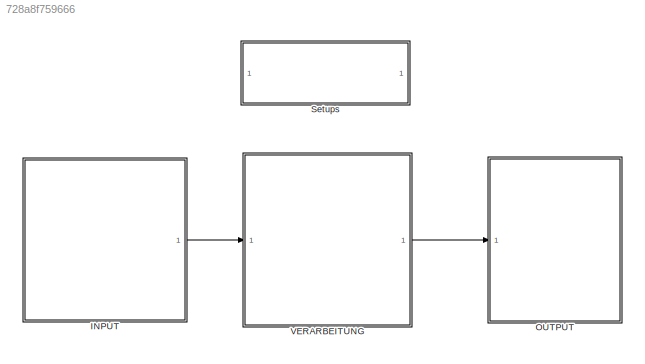
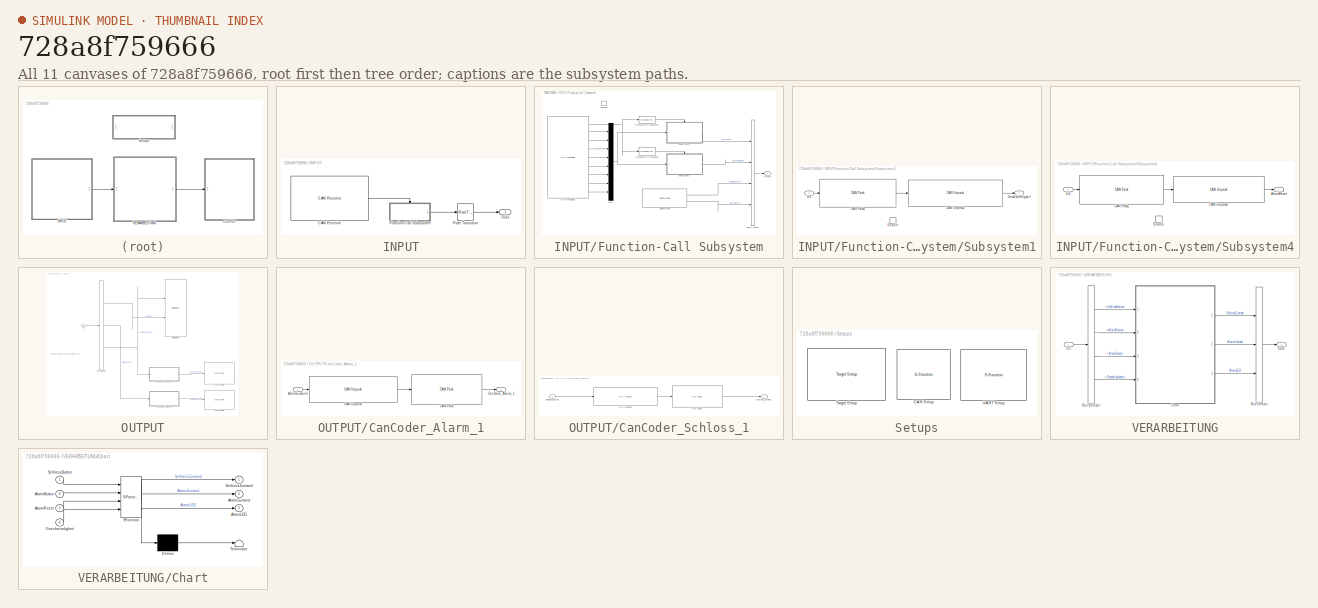
[diagram: thumbnail index - all 11 canvases of the model, root first then tree order]
MODEL slx_728a8f759666
KIND model
CONFIG AbsTol = auto
CONFIG EnableMultiTasking = off
CONFIG FixedStep = auto
CONFIG MaxStep = auto
CONFIG MinStep = auto
CONFIG PreLoadFcn = waijung.modelPreload; % Required for working with Waijung Blockset. Do not remove.
CONFIG RelTol = 1e-3
CONFIG SampleTimeConstraint = Unconstrained
CONFIG Solver = FixedStepAuto
CONFIG SolverName = FixedStepAuto
CONFIG StartTime = 0.0
CONFIG StopTime = 10.0
BLOCK [SubSystem] INPUT
  Ports = [0, 1]
  RequestExecContextInheritance = off
BLOCK [Reference] INPUT/CAN Receive  REF=stm32f4_canbus_lib/CAN Receive
  Ports = [0, 1]
  SourceBlock = stm32f4_canbus_lib/CAN Receive
  SourceProductName = Waijung Blockset
  SourceType = stm32f4_can
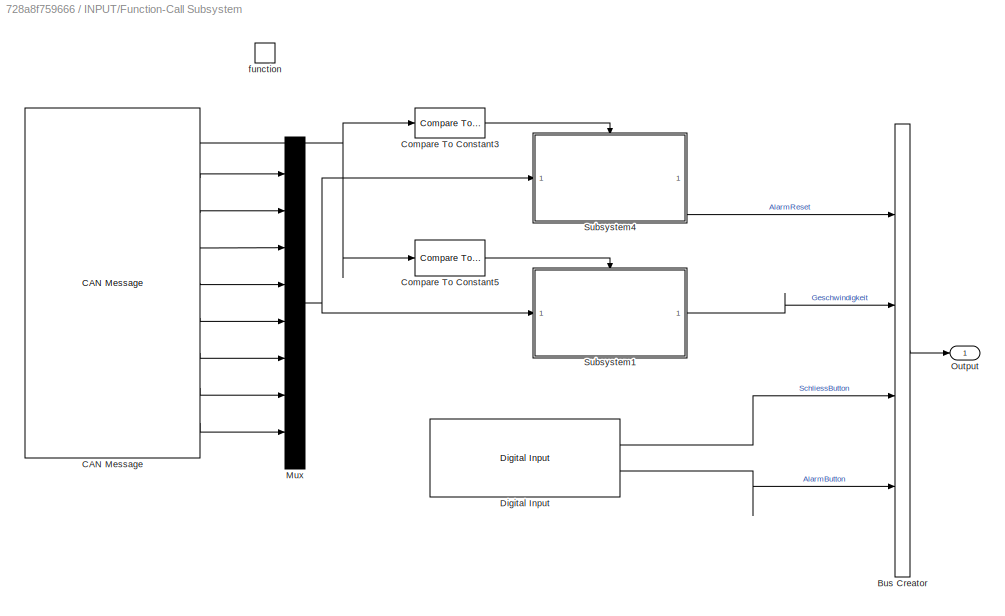
BLOCK [SubSystem] INPUT/Function-Call Subsystem
  Ports = [0, 1, 0, 1]
  RequestExecContextInheritance = off
  TreatAsAtomicUnit = on
BLOCK [BusCreator] INPUT/Function-Call Subsystem/Bus Creator
  DisplayOption = bar
  InheritFromInputs = on
  Inputs = 4
  Ports = [4, 1]
BLOCK [Reference] INPUT/Function-Call Subsystem/CAN Message  REF=stm32f4_canbus_lib/CAN Message
  Ports = [0, 9]
  SourceBlock = stm32f4_canbus_lib/CAN Message
  SourceProductName = Waijung Blockset
  SourceType = stm32f4_can
BLOCK [Reference] INPUT/Function-Call Subsystem/Compare To Constant3  REF=simulink/Logic and Bit
Operations/Compare
To Constant
  Ports = [1, 1]
  SourceBlock = simulink/Logic and Bit\nOperations/Compare\nTo Constant
  SourceProductBaseCode = SL
  SourceProductName = Simulink
  SourceType = Compare To Constant
BLOCK [Reference] INPUT/Function-Call Subsystem/Compare To Constant5  REF=simulink/Logic and Bit
Operations/Compare
To Constant
  Ports = [1, 1]
  SourceBlock = simulink/Logic and Bit\nOperations/Compare\nTo Constant
  SourceProductBaseCode = SL
  SourceProductName = Simulink
  SourceType = Compare To Constant
BLOCK [Reference] INPUT/Function-Call Subsystem/Digital Input  REF=stm32f4_io_lib/Digital Input
  Ports = [0, 2]
  SourceBlock = stm32f4_io_lib/Digital Input
  SourceType = stm32f4_digital_input
BLOCK [Mux] INPUT/Function-Call Subsystem/Mux
  DisplayOption = bar
  Inputs = 8
  Ports = [8, 1]
BLOCK [Outport] INPUT/Function-Call Subsystem/Output
  IconDisplay = Port number
  VectorParamsAs1DForOutWhenUnconnected = off
BLOCK [SubSystem] INPUT/Function-Call Subsystem/Subsystem1
  Ports = [1, 1, 1]
  RequestExecContextInheritance = off
BLOCK [Reference] INPUT/Function-Call Subsystem/Subsystem1/CAN Pack2  REF=canmsglib/CAN Pack
  Ports = [1, 1]
  SourceBlock = canmsglib/CAN Pack
  SourceProductBaseCode = XP
  SourceProductName = Simulink Real-Time
  SourceType = CAN Pack
BLOCK [Reference] INPUT/Function-Call Subsystem/Subsystem1/CAN Unpack2  REF=canmsglib/CAN Unpack
  Ports = [1, 1]
  SourceBlock = canmsglib/CAN Unpack
  SourceProductBaseCode = XP
  SourceProductName = Simulink Real-Time
  SourceType = CAN Unpack
BLOCK [EnablePort] INPUT/Function-Call Subsystem/Subsystem1/Enable
  Ports = []
BLOCK [Outport] INPUT/Function-Call Subsystem/Subsystem1/Geschwindigkeit
  IconDisplay = Port number
  VectorParamsAs1DForOutWhenUnconnected = off
BLOCK [Inport] INPUT/Function-Call Subsystem/Subsystem1/In1
  IconDisplay = Port number
BLOCK [SubSystem] INPUT/Function-Call Subsystem/Subsystem4
  Ports = [1, 1, 1]
  RequestExecContextInheritance = off
BLOCK [Outport] INPUT/Function-Call Subsystem/Subsystem4/AlarmReset
  IconDisplay = Port number
  VectorParamsAs1DForOutWhenUnconnected = off
BLOCK [Reference] INPUT/Function-Call Subsystem/Subsystem4/CAN Pack2  REF=canmsglib/CAN Pack
  Ports = [1, 1]
  SourceBlock = canmsglib/CAN Pack
  SourceProductBaseCode = XP
  SourceProductName = Simulink Real-Time
  SourceType = CAN Pack
BLOCK [Reference] INPUT/Function-Call Subsystem/Subsystem4/CAN Unpack2  REF=canmsglib/CAN Unpack
  Ports = [1, 1]
  SourceBlock = canmsglib/CAN Unpack
  SourceProductBaseCode = XP
  SourceProductName = Simulink Real-Time
  SourceType = CAN Unpack
BLOCK [EnablePort] INPUT/Function-Call Subsystem/Subsystem4/Enable
  Ports = []
BLOCK [Inport] INPUT/Function-Call Subsystem/Subsystem4/In1
  IconDisplay = Port number
BLOCK [TriggerPort] INPUT/Function-Call Subsystem/function
  Ports = []
  StatesWhenEnabling = held
  TriggerType = function-call
  VariantControl = Variant
BLOCK [Outport] INPUT/Out1
  IconDisplay = Port number
  VectorParamsAs1DForOutWhenUnconnected = off
BLOCK [RateTransition] INPUT/Rate Transition
BLOCK [SubSystem] OUTPUT
  Ports = [1]
  RequestExecContextInheritance = off
BLOCK [BusSelector] OUTPUT/Bus Selector
  OutputAsBus = off
  OutputSignals = AlarmLED,AlarmZustand,SchliessZustand
  Ports = [1, 3]
BLOCK [Reference] OUTPUT/CAN Transmit  REF=stm32f4_canbus_lib/CAN Transmit
  Ports = [1]
  SourceBlock = stm32f4_canbus_lib/CAN Transmit
  SourceType = stm32f4_can
BLOCK [Reference] OUTPUT/CAN Transmit1  REF=stm32f4_canbus_lib/CAN Transmit
  Ports = [1]
  SourceBlock = stm32f4_canbus_lib/CAN Transmit
  SourceType = stm32f4_can
BLOCK [SubSystem] OUTPUT/CanCoder_Alarm_1
  Ports = [1, 1]
  RequestExecContextInheritance = off
BLOCK [Inport] OUTPUT/CanCoder_Alarm_1/AlarmZustand
  IconDisplay = Port number
BLOCK [Reference] OUTPUT/CanCoder_Alarm_1/CAN Pack  REF=canmsglib/CAN Pack
  Ports = [1, 1]
  SourceBlock = canmsglib/CAN Pack
  SourceProductBaseCode = XP
  SourceProductName = Simulink Real-Time
  SourceType = CAN Pack
BLOCK [Reference] OUTPUT/CanCoder_Alarm_1/CAN Unpack  REF=canmsglib/CAN Unpack
  Ports = [1, 1]
  SourceBlock = canmsglib/CAN Unpack
  SourceProductBaseCode = XP
  SourceProductName = Simulink Real-Time
  SourceType = CAN Unpack
BLOCK [Outport] OUTPUT/CanCoder_Alarm_1/CanData_Alarm_1
  IconDisplay = Port number
  VectorParamsAs1DForOutWhenUnconnected = off
BLOCK [SubSystem] OUTPUT/CanCoder_Schloss_1
  Ports = [1, 1]
  RequestExecContextInheritance = off
BLOCK [Reference] OUTPUT/CanCoder_Schloss_1/CAN Pack  REF=canmsglib/CAN Pack
  Ports = [1, 1]
  SourceBlock = canmsglib/CAN Pack
  SourceProductBaseCode = XP
  SourceProductName = Simulink Real-Time
  SourceType = CAN Pack
BLOCK [Reference] OUTPUT/CanCoder_Schloss_1/CAN Unpack  REF=canmsglib/CAN Unpack
  Ports = [1, 1]
  SourceBlock = canmsglib/CAN Unpack
  SourceProductBaseCode = XP
  SourceProductName = Simulink Real-Time
  SourceType = CAN Unpack
BLOCK [Outport] OUTPUT/CanCoder_Schloss_1/CanData_Schloss_1
  IconDisplay = Port number
  VectorParamsAs1DForOutWhenUnconnected = off
BLOCK [Inport] OUTPUT/CanCoder_Schloss_1/SchliessZustand
  IconDisplay = Port number
BLOCK [Reference] OUTPUT/Digital Output  REF=stm32f4_io_lib/Digital Output
  Ports = [2]
  SourceBlock = stm32f4_io_lib/Digital Output
  SourceProductName = Waijung Blockset
  SourceType = stm32f4_digital_output
BLOCK [Inport] OUTPUT/In1
  IconDisplay = Port number
BLOCK [SubSystem] Setups
  Ports = []
  RequestExecContextInheritance = off
BLOCK [S-Function] Setups/CAN Setup
  EnableBusSupport = off
  FunctionName = stm32f4_can
  Parameters = conf,canmodule,0,inputarray,outputarray,'','',confstr,sampletime,sampletimestr,blockid
  Ports = []
  SFcnIsStateOwnerBlock = off
  SFunctionDeploymentMode = off
BLOCK [Reference] Setups/Target Setup  REF=stm32f4_device_config_lib/Target Setup
  Ports = []
  Priority = 100
  SourceBlock = stm32f4_device_config_lib/Target Setup
  SourceProductName = Waijung Blockset
  SourceType = stm32f4_target_setup
BLOCK [S-Function] Setups/UART Setup
  EnableBusSupport = off
  FunctionName = stm32f4_usart
  Parameters = configuration,uartmodule,transfer,baudrate,inputtype,outputtype,confstr,binheaderarray,binterminatorarray,asciiheader,asciiterminator,bindatalength,packetmode,varname,sampletime,sampletimestr,blockid
  Ports = []
  Priority = 1
  SFcnIsStateOwnerBlock = off
  SFunctionDeploymentMode = off
BLOCK [SubSystem] VERARBEITUNG
  Ports = [1, 1]
  RequestExecContextInheritance = off
BLOCK [BusCreator] VERARBEITUNG/Bus Creator
  DisplayOption = bar
  InheritFromInputs = on
  Inputs = 3
  Ports = [3, 1]
BLOCK [BusSelector] VERARBEITUNG/Bus Selector
  OutputAsBus = off
  OutputSignals = SchliessButton,AlarmButton,AlarmReset,Geschwindigkeit
  Ports = [1, 4]
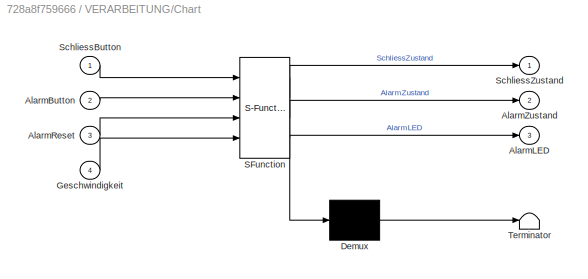
BLOCK [SubSystem] VERARBEITUNG/Chart
  ErrorFcn = Stateflow.Translate.translate
  PermitHierarchicalResolution = ExplicitOnly
  Ports = [4, 3]
  RequestExecContextInheritance = off
  SFBlockType = Chart
  TreatAsAtomicUnit = on
BLOCK [Demux] VERARBEITUNG/Chart/ Demux 
  Outputs = 1
  Ports = [1, 1]
BLOCK [S-Function] VERARBEITUNG/Chart/ SFunction 
  EnableBusSupport = off
  FunctionName = sf_sfun
  PortCounts = [4 4]
  Ports = [4, 4]
  SFcnIsStateOwnerBlock = off
  SFunctionDeploymentMode = off
  Tag = Stateflow S-Function 2
BLOCK [Terminator] VERARBEITUNG/Chart/ Terminator 
BLOCK [Inport] VERARBEITUNG/Chart/AlarmButton
  IconDisplay = Port number
  Port = 2
BLOCK [Outport] VERARBEITUNG/Chart/AlarmLED
  IconDisplay = Port number
  Port = 3
  VectorParamsAs1DForOutWhenUnconnected = off
BLOCK [Inport] VERARBEITUNG/Chart/AlarmReset
  IconDisplay = Port number
  Port = 3
BLOCK [Outport] VERARBEITUNG/Chart/AlarmZustand
  IconDisplay = Port number
  Port = 2
  VectorParamsAs1DForOutWhenUnconnected = off
BLOCK [Inport] VERARBEITUNG/Chart/Geschwindigkeit
  IconDisplay = Port number
  Port = 4
BLOCK [Inport] VERARBEITUNG/Chart/SchliessButton
  IconDisplay = Port number
BLOCK [Outport] VERARBEITUNG/Chart/SchliessZustand
  IconDisplay = Port number
  VectorParamsAs1DForOutWhenUnconnected = off
BLOCK [Inport] VERARBEITUNG/In1
  IconDisplay = Port number
BLOCK [Outport] VERARBEITUNG/Out1
  IconDisplay = Port number
  VectorParamsAs1DForOutWhenUnconnected = off
ANNOTATION OUTPUT: SchliessZustand = SchliessZustand_LED
LINE INPUT/CAN Receive:1 -> INPUT/Function-Call Subsystem:trigger
LINE INPUT/Function-Call Subsystem/Bus Creator:1 -> INPUT/Function-Call Subsystem/Output:1
NET INPUT/Function-Call Subsystem/CAN Message:1 -> INPUT/Function-Call Subsystem/Compare To Constant3:1, INPUT/Function-Call Subsystem/Compare To Constant5:1
LINE INPUT/Function-Call Subsystem/CAN Message:2 -> INPUT/Function-Call Subsystem/Mux:1
LINE INPUT/Function-Call Subsystem/CAN Message:3 -> INPUT/Function-Call Subsystem/Mux:2
LINE INPUT/Function-Call Subsystem/CAN Message:4 -> INPUT/Function-Call Subsystem/Mux:3
LINE INPUT/Function-Call Subsystem/CAN Message:5 -> INPUT/Function-Call Subsystem/Mux:4
LINE INPUT/Function-Call Subsystem/CAN Message:6 -> INPUT/Function-Call Subsystem/Mux:5
LINE INPUT/Function-Call Subsystem/CAN Message:7 -> INPUT/Function-Call Subsystem/Mux:6
LINE INPUT/Function-Call Subsystem/CAN Message:8 -> INPUT/Function-Call Subsystem/Mux:7
LINE INPUT/Function-Call Subsystem/CAN Message:9 -> INPUT/Function-Call Subsystem/Mux:8
LINE INPUT/Function-Call Subsystem/Compare To Constant3:1 -> INPUT/Function-Call Subsystem/Subsystem4:enable
LINE INPUT/Function-Call Subsystem/Compare To Constant5:1 -> INPUT/Function-Call Subsystem/Subsystem1:enable
LINE INPUT/Function-Call Subsystem/Digital Input:1 -> INPUT/Function-Call Subsystem/Bus Creator:3
LINE INPUT/Function-Call Subsystem/Digital Input:2 -> INPUT/Function-Call Subsystem/Bus Creator:4
NET INPUT/Function-Call Subsystem/Mux:1 -> INPUT/Function-Call Subsystem/Subsystem1:1, INPUT/Function-Call Subsystem/Subsystem4:1
LINE INPUT/Function-Call Subsystem/Subsystem1/CAN Pack2:1 -> INPUT/Function-Call Subsystem/Subsystem1/CAN Unpack2:1
LINE INPUT/Function-Call Subsystem/Subsystem1/CAN Unpack2:1 -> INPUT/Function-Call Subsystem/Subsystem1/Geschwindigkeit:1
LINE INPUT/Function-Call Subsystem/Subsystem1/In1:1 -> INPUT/Function-Call Subsystem/Subsystem1/CAN Pack2:1
LINE INPUT/Function-Call Subsystem/Subsystem1:1 -> INPUT/Function-Call Subsystem/Bus Creator:2
LINE INPUT/Function-Call Subsystem/Subsystem4/CAN Pack2:1 -> INPUT/Function-Call Subsystem/Subsystem4/CAN Unpack2:1
LINE INPUT/Function-Call Subsystem/Subsystem4/CAN Unpack2:1 -> INPUT/Function-Call Subsystem/Subsystem4/AlarmReset:1
LINE INPUT/Function-Call Subsystem/Subsystem4/In1:1 -> INPUT/Function-Call Subsystem/Subsystem4/CAN Pack2:1
LINE INPUT/Function-Call Subsystem/Subsystem4:1 -> INPUT/Function-Call Subsystem/Bus Creator:1
LINE INPUT/Function-Call Subsystem:1 -> INPUT/Rate Transition:1
LINE INPUT/Rate Transition:1 -> INPUT/Out1:1
LINE INPUT:1 -> VERARBEITUNG:1
LINE OUTPUT/Bus Selector:1 -> OUTPUT/Digital Output:2
LINE OUTPUT/Bus Selector:2 -> OUTPUT/CanCoder_Alarm_1:1
NET OUTPUT/Bus Selector:3 -> OUTPUT/CanCoder_Schloss_1:1, OUTPUT/Digital Output:1
LINE OUTPUT/CanCoder_Alarm_1/AlarmZustand:1 -> OUTPUT/CanCoder_Alarm_1/CAN Unpack:1
LINE OUTPUT/CanCoder_Alarm_1/CAN Pack:1 -> OUTPUT/CanCoder_Alarm_1/CanData_Alarm_1:1
LINE OUTPUT/CanCoder_Alarm_1/CAN Unpack:1 -> OUTPUT/CanCoder_Alarm_1/CAN Pack:1
LINE OUTPUT/CanCoder_Alarm_1:1 -> OUTPUT/CAN Transmit1:1
LINE OUTPUT/CanCoder_Schloss_1/CAN Pack:1 -> OUTPUT/CanCoder_Schloss_1/CanData_Schloss_1:1
LINE OUTPUT/CanCoder_Schloss_1/CAN Unpack:1 -> OUTPUT/CanCoder_Schloss_1/CAN Pack:1
LINE OUTPUT/CanCoder_Schloss_1/SchliessZustand:1 -> OUTPUT/CanCoder_Schloss_1/CAN Unpack:1
LINE OUTPUT/CanCoder_Schloss_1:1 -> OUTPUT/CAN Transmit:1
LINE OUTPUT/In1:1 -> OUTPUT/Bus Selector:1
LINE VERARBEITUNG/Bus Creator:1 -> VERARBEITUNG/Out1:1
LINE VERARBEITUNG/Bus Selector:1 -> VERARBEITUNG/Chart:1
LINE VERARBEITUNG/Bus Selector:2 -> VERARBEITUNG/Chart:2
LINE VERARBEITUNG/Bus Selector:3 -> VERARBEITUNG/Chart:3
LINE VERARBEITUNG/Bus Selector:4 -> VERARBEITUNG/Chart:4
LINE VERARBEITUNG/Chart:1 -> VERARBEITUNG/Bus Creator:1
LINE VERARBEITUNG/Chart:2 -> VERARBEITUNG/Bus Creator:2
LINE VERARBEITUNG/Chart:3 -> VERARBEITUNG/Bus Creator:3
LINE VERARBEITUNG/In1:1 -> VERARBEITUNG/Bus Selector:1
LINE VERARBEITUNG:1 -> OUTPUT:1
note: NET lines group one-source signal fan-out (src -> all destinations, sorted); 1:1 wires keep LINE
CHART VERARBEITUNG/Chart states=10 transitions=14
  STATE_LABEL 'State_Geschlossen\nen, du: SchliessZustand = true'
  STATE_LABEL 'State_AA_OFF'
  STATE_LABEL 'State_AA_ON'
  STATE_LABEL 'State_TRIGGER_ON\nen, du: AlarmZustand = true\nAlarmLED = true'
  STATE_LABEL 'State_TRIGGER_OFF\n'
  STATE_LABEL 'State_AlarmLED_OFF\nen, du: AlarmLED = false'
  STATE_LABEL 'State_AlarmLED_ON\nen, du: AlarmLED = true'
  STATE_LABEL '[after(0.5, sec)]'
  STATE_LABEL '[AlarmZustand == false && after(0.5, sec)]'
  STATE_LABEL '[AlarmButton == true]'
  STATE_LABEL '[Geschwindigkeit == 0]'
  STATE_LABEL '[Geschwindigkeit > 0]'
  STATE_LABEL 'State_AA_OFF'
  STATE_LABEL 'State_AA_ON'
  STATE_LABEL 'State_TRIGGER_ON\nen, du: AlarmZustand = true\nAlarmLED = true'
  STATE_LABEL 'State_TRIGGER_OFF\n'
  STATE_LABEL 'State_AlarmLED_OFF\nen, du: AlarmLED = false'
  STATE_LABEL 'State_AlarmLED_ON\nen, du: AlarmLED = true'
  STATE_LABEL '[after(0.5, sec)]'
  STATE_LABEL '[AlarmZustand == false && after(0.5, sec)]'
  STATE_LABEL '[AlarmButton == true]'
  STATE_LABEL 'State_TRIGGER_ON\nen, du: AlarmZustand = true\nAlarmLED = true'
  STATE_LABEL 'State_TRIGGER_OFF\n'
  STATE_LABEL 'State_AlarmLED_OFF\nen, du: AlarmLED = false'
  STATE_LABEL 'State_AlarmLED_ON\nen, du: AlarmLED = true'
  STATE_LABEL '[after(0.5, sec)]'
  STATE_LABEL '[AlarmZustand == false && after(0.5, sec)]'
  STATE_LABEL 'State_AlarmLED_OFF\nen, du: AlarmLED = false'
  STATE_LABEL 'State_AlarmLED_ON\nen, du: AlarmLED = true'
  STATE_LABEL 'State_Offen\nen, du: SchliessZustand = false'
  STATE_LABEL 'State_AlarmReset_Gedrueckt\nen, du: AlarmZustand = false\nAlarmLED = false'
  STATE_LABEL 'State_AlarmReset_NichtGedrueckt'
  STATE_LABEL '[AlarmReset == true]'
  STATE_LABEL 'State_AlarmReset_Gedrueckt\nen, du: AlarmZustand = false\nAlarmLED = false'
  STATE_LABEL 'State_AlarmReset_NichtGedrueckt'
